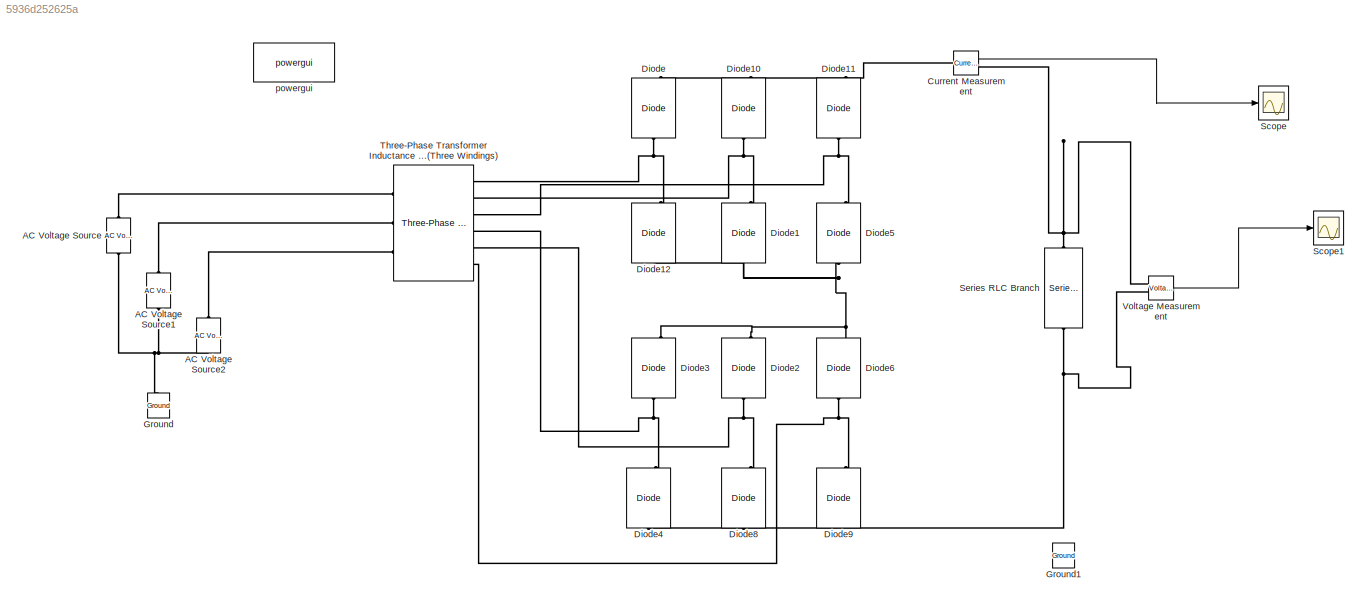
MODEL slx_5936d252625a
KIND model
CONFIG AbsTol = auto
CONFIG EnableMultiTasking = off
CONFIG FixedStep = auto
CONFIG MaxStep = auto
CONFIG MinStep = auto
CONFIG RelTol = 1e-3
CONFIG SampleTimeConstraint = Unconstrained
CONFIG Solver = VariableStepAuto
CONFIG SolverName = VariableStepAuto
CONFIG StartTime = 0.0
CONFIG StopTime = 0.05
BLOCK [Reference] AC Voltage Source  REF=powerlib/Electrical
Sources/AC Voltage Source
  Ports = [0, 0, 0, 0, 0, 1, 1]
  SourceBlock = powerlib/Electrical\nSources/AC Voltage Source
  SourceProductBaseCode = PS
  SourceProductName = Simscape Power Systems
  SourceType = AC Voltage Source
BLOCK [Reference] AC Voltage Source1  REF=powerlib/Electrical
Sources/AC Voltage Source
  Ports = [0, 0, 0, 0, 0, 1, 1]
  SourceBlock = powerlib/Electrical\nSources/AC Voltage Source
  SourceProductBaseCode = PS
  SourceProductName = Simscape Power Systems
  SourceType = AC Voltage Source
BLOCK [Reference] AC Voltage Source2  REF=powerlib/Electrical
Sources/AC Voltage Source
  Ports = [0, 0, 0, 0, 0, 1, 1]
  SourceBlock = powerlib/Electrical\nSources/AC Voltage Source
  SourceProductBaseCode = PS
  SourceProductName = Simscape Power Systems
  SourceType = AC Voltage Source
BLOCK [Reference] Current Measurement  REF=powerlib/Measurements/Current Measurement
  Ports = [0, 1, 0, 0, 0, 1, 1]
  SourceBlock = powerlib/Measurements/Current Measurement
  SourceProductBaseCode = PS
  SourceProductName = Simscape Power Systems
  SourceType = Current Measurement
  UserDataPersistent = on
BLOCK [Reference] Diode  REF=powerlib/Power
Electronics/Diode
  Ports = [0, 1, 0, 0, 0, 1, 1]
  SourceBlock = powerlib/Power\nElectronics/Diode
  SourceProductBaseCode = PS
  SourceProductName = Simscape Power Systems
  SourceType = Diode
BLOCK [Reference] Diode1  REF=powerlib/Power
Electronics/Diode
  Ports = [0, 1, 0, 0, 0, 1, 1]
  SourceBlock = powerlib/Power\nElectronics/Diode
  SourceProductBaseCode = PS
  SourceProductName = Simscape Power Systems
  SourceType = Diode
BLOCK [Reference] Diode10  REF=powerlib/Power
Electronics/Diode
  Ports = [0, 1, 0, 0, 0, 1, 1]
  SourceBlock = powerlib/Power\nElectronics/Diode
  SourceProductBaseCode = PS
  SourceProductName = Simscape Power Systems
  SourceType = Diode
BLOCK [Reference] Diode11  REF=powerlib/Power
Electronics/Diode
  Ports = [0, 1, 0, 0, 0, 1, 1]
  SourceBlock = powerlib/Power\nElectronics/Diode
  SourceProductBaseCode = PS
  SourceProductName = Simscape Power Systems
  SourceType = Diode
BLOCK [Reference] Diode12  REF=powerlib/Power
Electronics/Diode
  Ports = [0, 1, 0, 0, 0, 1, 1]
  SourceBlock = powerlib/Power\nElectronics/Diode
  SourceProductBaseCode = PS
  SourceProductName = Simscape Power Systems
  SourceType = Diode
BLOCK [Reference] Diode2  REF=powerlib/Power
Electronics/Diode
  Ports = [0, 1, 0, 0, 0, 1, 1]
  SourceBlock = powerlib/Power\nElectronics/Diode
  SourceProductBaseCode = PS
  SourceProductName = Simscape Power Systems
  SourceType = Diode
BLOCK [Reference] Diode3  REF=powerlib/Power
Electronics/Diode
  Ports = [0, 1, 0, 0, 0, 1, 1]
  SourceBlock = powerlib/Power\nElectronics/Diode
  SourceProductBaseCode = PS
  SourceProductName = Simscape Power Systems
  SourceType = Diode
BLOCK [Reference] Diode4  REF=powerlib/Power
Electronics/Diode
  Ports = [0, 1, 0, 0, 0, 1, 1]
  SourceBlock = powerlib/Power\nElectronics/Diode
  SourceProductBaseCode = PS
  SourceProductName = Simscape Power Systems
  SourceType = Diode
BLOCK [Reference] Diode5  REF=powerlib/Power
Electronics/Diode
  Ports = [0, 1, 0, 0, 0, 1, 1]
  SourceBlock = powerlib/Power\nElectronics/Diode
  SourceProductBaseCode = PS
  SourceProductName = Simscape Power Systems
  SourceType = Diode
BLOCK [Reference] Diode6  REF=powerlib/Power
Electronics/Diode
  Ports = [0, 1, 0, 0, 0, 1, 1]
  SourceBlock = powerlib/Power\nElectronics/Diode
  SourceProductBaseCode = PS
  SourceProductName = Simscape Power Systems
  SourceType = Diode
BLOCK [Reference] Diode8  REF=powerlib/Power
Electronics/Diode
  Ports = [0, 1, 0, 0, 0, 1, 1]
  SourceBlock = powerlib/Power\nElectronics/Diode
  SourceProductBaseCode = PS
  SourceProductName = Simscape Power Systems
  SourceType = Diode
BLOCK [Reference] Diode9  REF=powerlib/Power
Electronics/Diode
  Ports = [0, 1, 0, 0, 0, 1, 1]
  SourceBlock = powerlib/Power\nElectronics/Diode
  SourceProductBaseCode = PS
  SourceProductName = Simscape Power Systems
  SourceType = Diode
BLOCK [Reference] Ground  REF=powerlib/Elements/Ground
  Ports = [0, 0, 0, 0, 0, 1]
  SourceBlock = powerlib/Elements/Ground
  SourceProductBaseCode = PS
  SourceProductName = Simscape Power Systems
  SourceType = Ground
BLOCK [Reference] Ground1  REF=powerlib/Elements/Ground
  Ports = [0, 0, 0, 0, 0, 1]
  SourceBlock = powerlib/Elements/Ground
  SourceProductBaseCode = PS
  SourceProductName = Simscape Power Systems
  SourceType = Ground
BLOCK [Scope] Scope
  Floating = off
  NumInputPorts = 1
  Ports = [1]
  ScopeSpecificationString = Simulink.scopes.TimeScopeBlockCfg('CurrentConfiguration', extmgr.ConfigurationSet(extmgr.Configuration('Core','General UI',true),extmgr.Configuration('Core','Source UI',true),extmgr.Configuration('Sources','WiredSimulink',true),extmgr.Configuration('Visuals','Time Domain',true,'SerializedDisplays',{struct('MinYLimReal','-3.80787','MaxYLimReal','35.64523','YLabelReal','','MinYLimMag','0.00000','Max...<+1444ch>
BLOCK [Scope] Scope1
  Floating = off
  NumInputPorts = 1
  Ports = [1]
  ScopeSpecificationString = Simulink.scopes.TimeScopeBlockCfg('CurrentConfiguration', extmgr.ConfigurationSet(extmgr.Configuration('Core','General UI',true),extmgr.Configuration('Core','Source UI',true),extmgr.Configuration('Sources','WiredSimulink',true,'DataLoggingVariableName','ScopeData1'),extmgr.Configuration('Visuals','Time Domain',true,'SerializedDisplays',{struct('MinYLimReal','-3.80787','MaxYLimReal','35.64523','YLa...<+1457ch>
BLOCK [Reference] Series RLC Branch  REF=powerlib/Elements/Series RLC Branch
  Ports = [0, 0, 0, 0, 0, 1, 1]
  SourceBlock = powerlib/Elements/Series RLC Branch
  SourceProductBaseCode = PS
  SourceProductName = Simscape Power Systems
  SourceType = Series RLC Branch
BLOCK [Reference] Three-Phase Transformer Inductance Matrix Type (Three Windings)  REF=powerlib/Elements/Three-Phase Transformer
Inductance Matrix Type
(Three Windings)
  Ports = [0, 0, 0, 0, 0, 3, 6]
  SourceBlock = powerlib/Elements/Three-Phase Transformer\nInductance Matrix Type\n(Three Windings)
  SourceProductBaseCode = PS
  SourceProductName = Simscape Power Systems
  SourceType = Three-Phase Transformer Inductance MatrixType (Three Windings)
BLOCK [Reference] Voltage Measurement  REF=powerlib/Measurements/Voltage Measurement
  Ports = [0, 1, 0, 0, 0, 2]
  SourceBlock = powerlib/Measurements/Voltage Measurement
  SourceProductBaseCode = PS
  SourceProductName = Simscape Power Systems
  SourceType = Voltage Measurement
  UserDataPersistent = on
BLOCK [Reference] powergui  REF=powerlib/powergui
  Ports = []
  Priority = 1
  SourceBlock = powerlib/powergui
  SourceProductBaseCode = PS
  SourceProductName = Simscape Power Systems
  SourceType = PSB option menu block
LINE Current Measurement:1 -> Scope:1
LINE Voltage Measurement:1 -> Scope1:1
PNET net1: AC Voltage Source1:LConn1 -- AC Voltage Source2:LConn1 -- AC Voltage Source:LConn1 -- Ground:LConn1
PLINE AC Voltage Source1:RConn1 -- Three-Phase Transformer Inductance Matrix Type (Three Windings):LConn2
PLINE AC Voltage Source2:RConn1 -- Three-Phase Transformer Inductance Matrix Type (Three Windings):LConn3
PLINE AC Voltage Source:RConn1 -- Three-Phase Transformer Inductance Matrix Type (Three Windings):LConn1
PNET net2: Current Measurement:LConn1 -- Diode10:RConn1 -- Diode11:RConn1 -- Diode:RConn1
PNET net3: Current Measurement:RConn1 -- Series RLC Branch:LConn1 -- Voltage Measurement:LConn1
PNET net4: Diode10:LConn1 -- Diode1:RConn1 -- Three-Phase Transformer Inductance Matrix Type (Three Windings):RConn2
PNET net5: Diode11:LConn1 -- Diode5:RConn1 -- Three-Phase Transformer Inductance Matrix Type (Three Windings):RConn3
PNET net6: Diode12:LConn1 -- Diode1:LConn1 -- Diode2:RConn1 -- Diode3:RConn1 -- Diode5:LConn1 -- Diode6:RConn1
PNET net7: Diode12:RConn1 -- Diode:LConn1 -- Three-Phase Transformer Inductance Matrix Type (Three Windings):RConn1
PNET net8: Diode2:LConn1 -- Diode8:RConn1 -- Three-Phase Transformer Inductance Matrix Type (Three Windings):RConn5
PNET net9: Diode3:LConn1 -- Diode4:RConn1 -- Three-Phase Transformer Inductance Matrix Type (Three Windings):RConn4
PNET net10: Diode4:LConn1 -- Diode8:LConn1 -- Diode9:LConn1 -- Series RLC Branch:RConn1 -- Voltage Measurement:LConn2
PNET net11: Diode6:LConn1 -- Diode9:RConn1 -- Three-Phase Transformer Inductance Matrix Type (Three Windings):RConn6
note: PNET lines group multi-terminal physical nets as a canonical sorted terminal list (undirected conserving connections); 2-terminal nets keep the pairwise PLINE form
